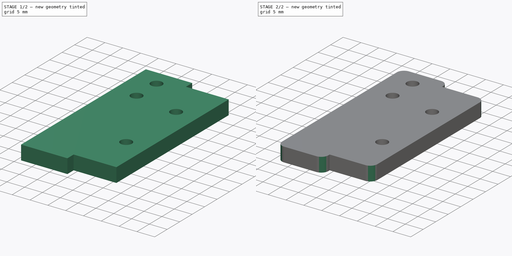
[diagram: build sequence overview — one tinted view per stage of 2, left to right]
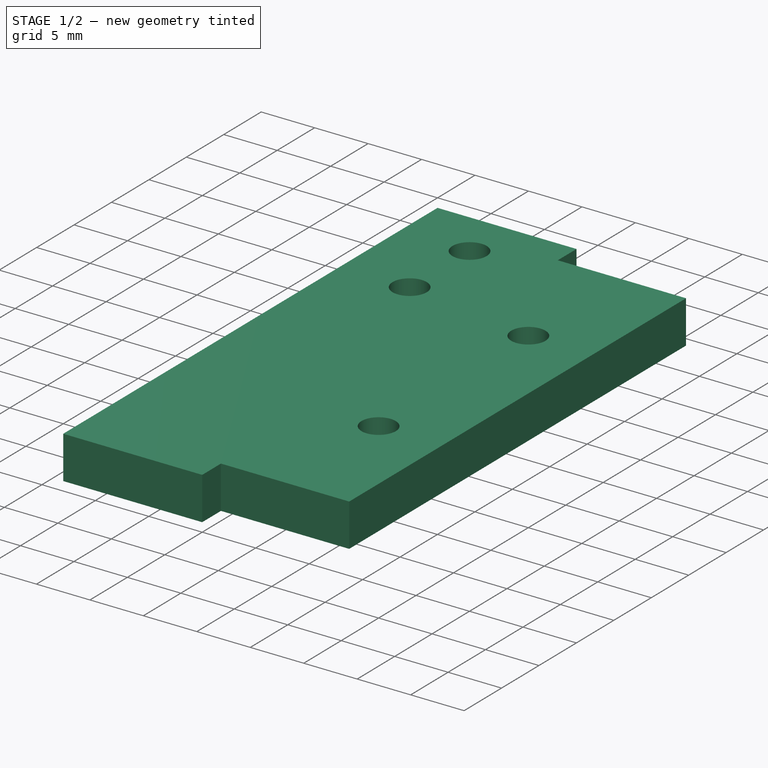
[diagram: stage 1 of 2 — iso view after this stage's code; geometry added in this stage tinted green]
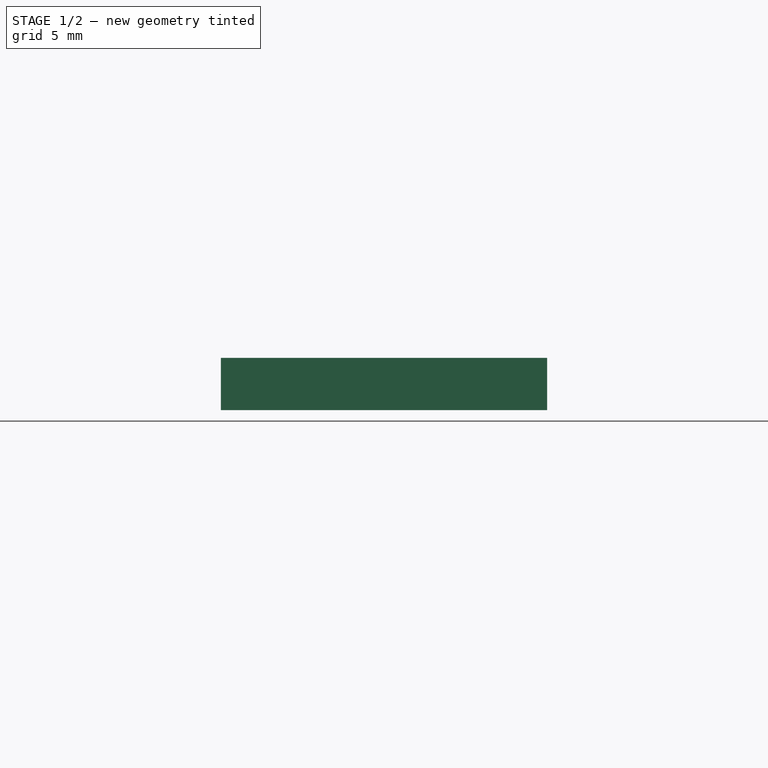
[diagram: stage 1 of 2 — front view after this stage's code; geometry added in this stage tinted green]
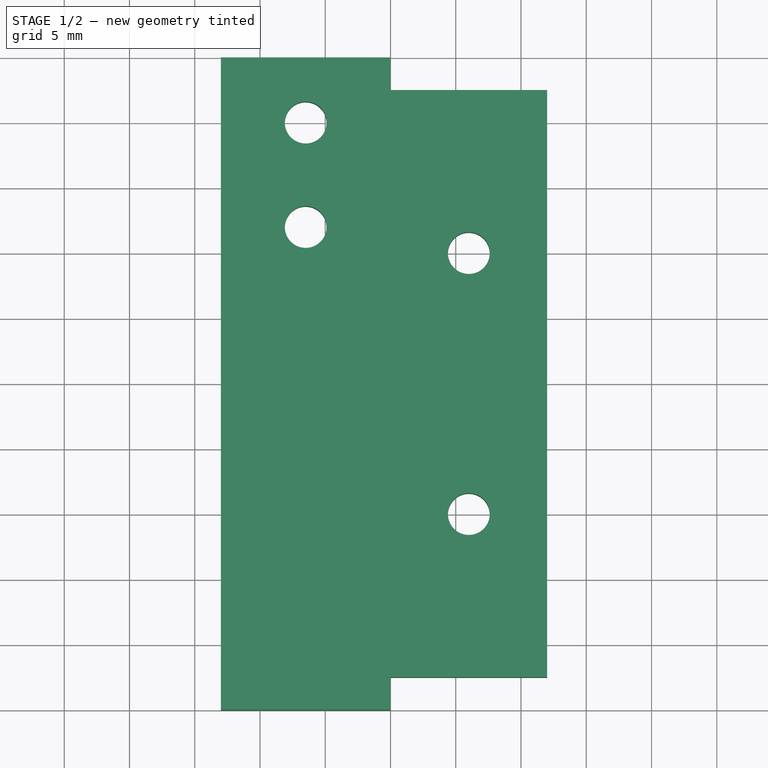
[diagram: stage 1 of 2 — top view after this stage's code; geometry added in this stage tinted green]
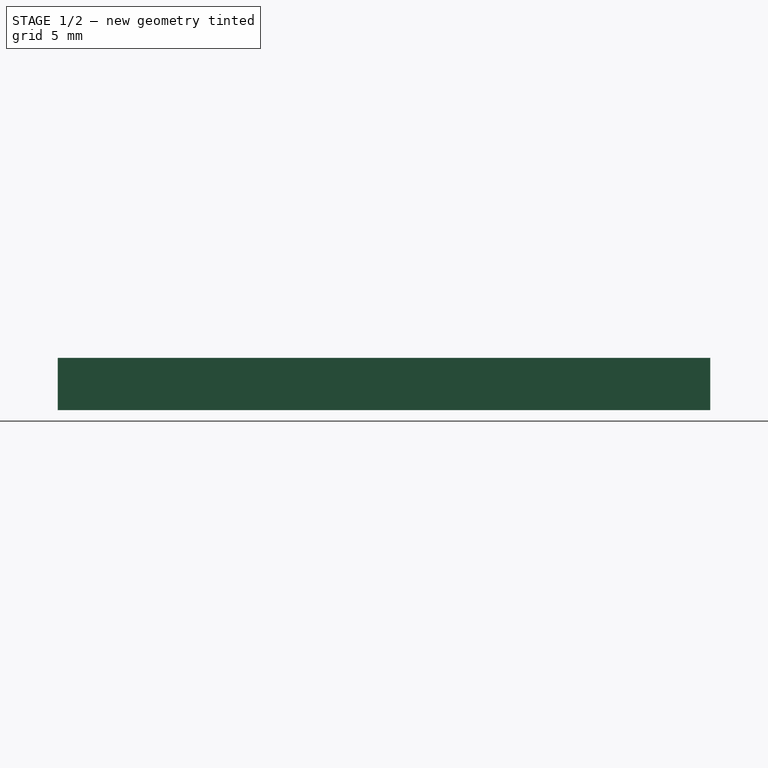
[diagram: stage 1 of 2 — right view after this stage's code; geometry added in this stage tinted green]
FCSTD DOCUMENT  (FreeCAD 0.19R)
Label: cablechainBedA
License: All rights reserved
LicenseURL: http://en.wikipedia.org/wiki/All_rights_reserved
objects: Sketcher::SketchObject×1, PartDesign::Pad×1, PartDesign::Fillet×1, PartDesign::Body×1
note: 6 computed .brp shape members not serialized (recipe doc carries the construction recipe); baked Part::Feature solids carry a one-line shape summary decoded from their .brp

FEATURE [Sketcher::SketchObject] Sketch
  MapMode = 5
  Support = -> [XY_Plane]
  sketch-geometry (13):
    g0: LineSegment StartX=0 StartY=22.5 StartZ=0 EndX=12 EndY=22.5 EndZ=0
    g1: LineSegment StartX=12 StartY=22.5 StartZ=0 EndX=12 EndY=-22.5 EndZ=0
    g2: LineSegment StartX=12 StartY=-22.5 StartZ=0 EndX=0 EndY=-22.5 EndZ=0
    g3: LineSegment StartX=0 StartY=-22.5 StartZ=0 EndX=0 EndY=-25 EndZ=0
    g4: LineSegment StartX=0 StartY=-25 StartZ=0 EndX=-13 EndY=-25 EndZ=0
    g5: LineSegment StartX=-13 StartY=-25 StartZ=0 EndX=-13 EndY=25 EndZ=0
    g6: LineSegment StartX=-13 StartY=25 StartZ=0 EndX=0 EndY=25 EndZ=0
    g7: LineSegment StartX=0 StartY=25 StartZ=0 EndX=0 EndY=22.5 EndZ=0
    g8: Circle CenterX=6 CenterY=10 CenterZ=0 NormalX=0 NormalY=0 NormalZ=1 AngleXU=0 Radius=1.6
    g9: Circle CenterX=6 CenterY=-10 CenterZ=0 NormalX=0 NormalY=0 NormalZ=1 AngleXU=0 Radius=1.6
    g10: Circle CenterX=-6.5 CenterY=20 CenterZ=0 NormalX=0 NormalY=0 NormalZ=1 AngleXU=0 Radius=1.6
    g11: Circle CenterX=-6.5 CenterY=12 CenterZ=0 NormalX=0 NormalY=0 NormalZ=1 AngleXU=0 Radius=1.6
    g12: LineSegment [constr] StartX=-6.5 StartY=20 StartZ=0 EndX=-6.5 EndY=12 EndZ=0
  constraints (35):
    c: PointOnObject(g0,g-2)
    c: Horizontal(g0)
    c: Coincident(g0,g1)
    c: Coincident(g1,g2)
    c: PointOnObject(g2,g-2)
    c: Horizontal(g2)
    c: Coincident(g2,g3)
    c: PointOnObject(g3,g-2)
    c: Coincident(g3,g4)
    c: Horizontal(g4)
    c: Coincident(g4,g5)
    c: Coincident(g5,g6)
    c: PointOnObject(g6,g-2)
    c: Horizontal(g6)
    c: Coincident(g6,g7)
    c: Coincident(g7,g0)
    c: Symmetric(g0,g1,g-1)
    c: Symmetric(g5,g4,g-1)
    c: DistanceY(g1,g1) = 45
    c: DistanceY(g5,g5) = 50
    c: DistanceX(g0,g0) = 12
    c: DistanceX(g6,g6) = 13
    c: Symmetric(g9,g8,g-1)
    c: Distance(g8,g9) = 20
    c: Distance(g8,g1) = 6
    c: Distance(g10,g5) = 6.5
    c: Coincident(g12,g10)
    c: Coincident(g12,g11)
    c: Vertical(g12)
    c: DistanceY(g12,g12) = 8
    c: Distance(g10,g6) = 5
    c: Radius(g8) = 1.6
    c: Equal(g8,g11)
    c: Equal(g8,g10)
    c: Equal(g8,g9)
FEATURE [PartDesign::Pad] Pad
  Direction = (1,1,1)
  Length = 4
  Length2 = 100
  Profile = -> Sketch
  Type = 0
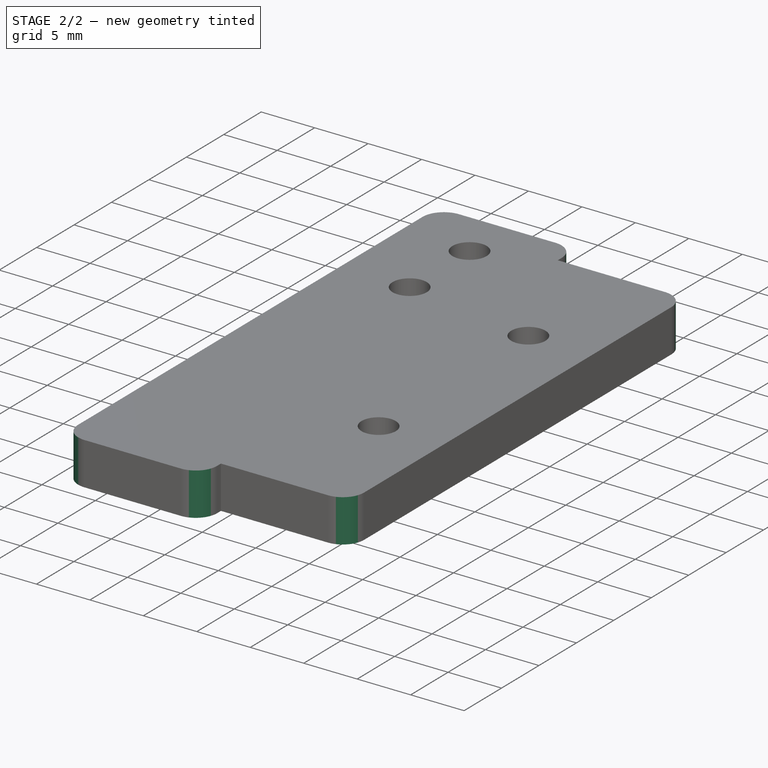
[diagram: stage 2 of 2 — iso view after this stage's code; geometry added in this stage tinted green]
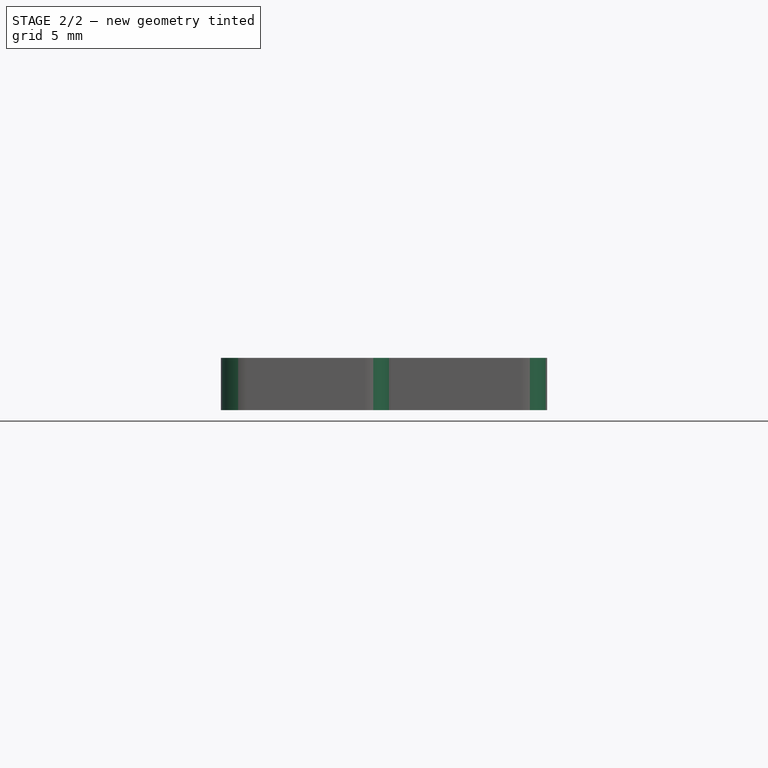
[diagram: stage 2 of 2 — front view after this stage's code; geometry added in this stage tinted green]
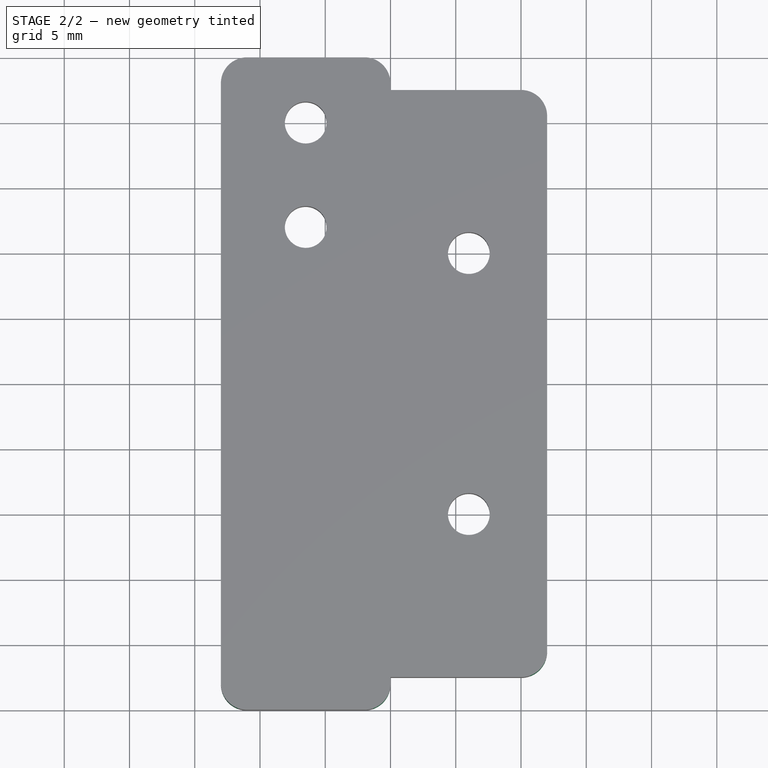
[diagram: stage 2 of 2 — top view after this stage's code; geometry added in this stage tinted green]
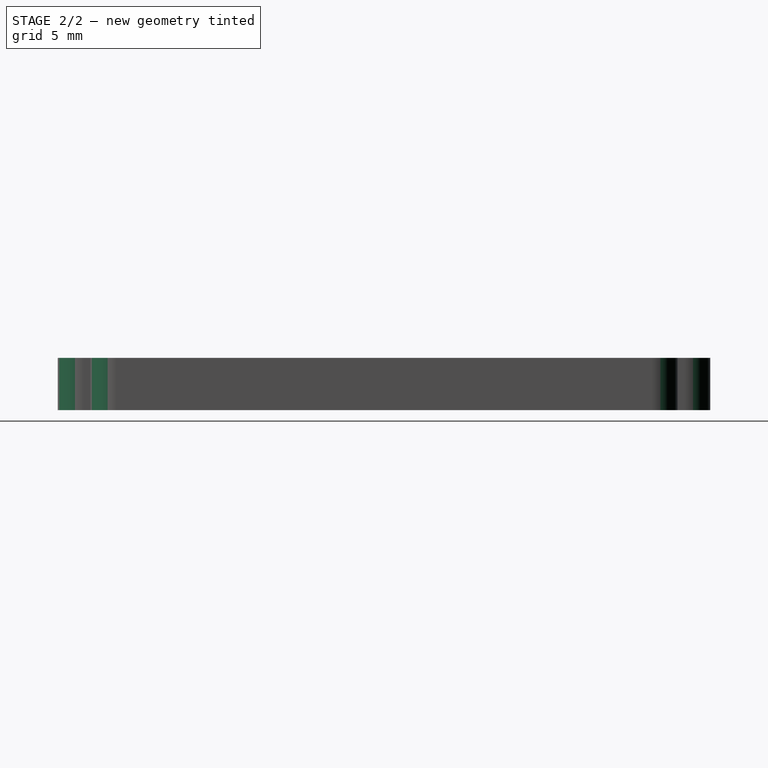
[diagram: stage 2 of 2 — right view after this stage's code; geometry added in this stage tinted green]
FEATURE [PartDesign::Fillet] Fillet
  Base = -> Pad [Edge2,Edge20,Edge17,Edge14,Edge11,Edge5]
  BaseFeature = -> Pad
  Radius = 2
  SupportTransform = false
FEATURE [PartDesign::Body] Body
  Group = -> [Sketch,Pad,Fillet]
  Origin = -> Origin
  Tip = -> Fillet
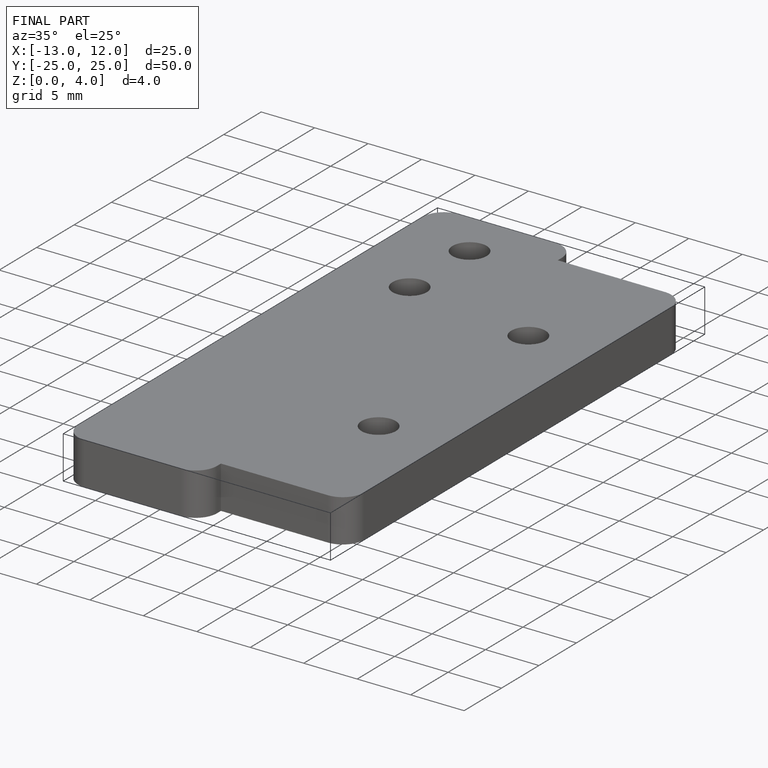
[diagram: finished part — iso view with bounding-box wireframe]
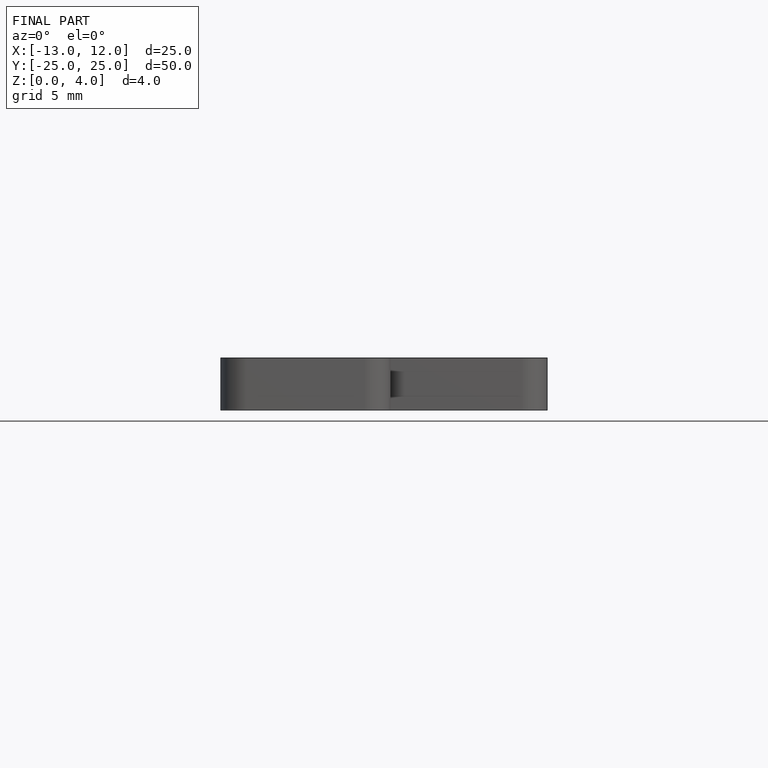
[diagram: finished part — front view with bounding-box wireframe]
